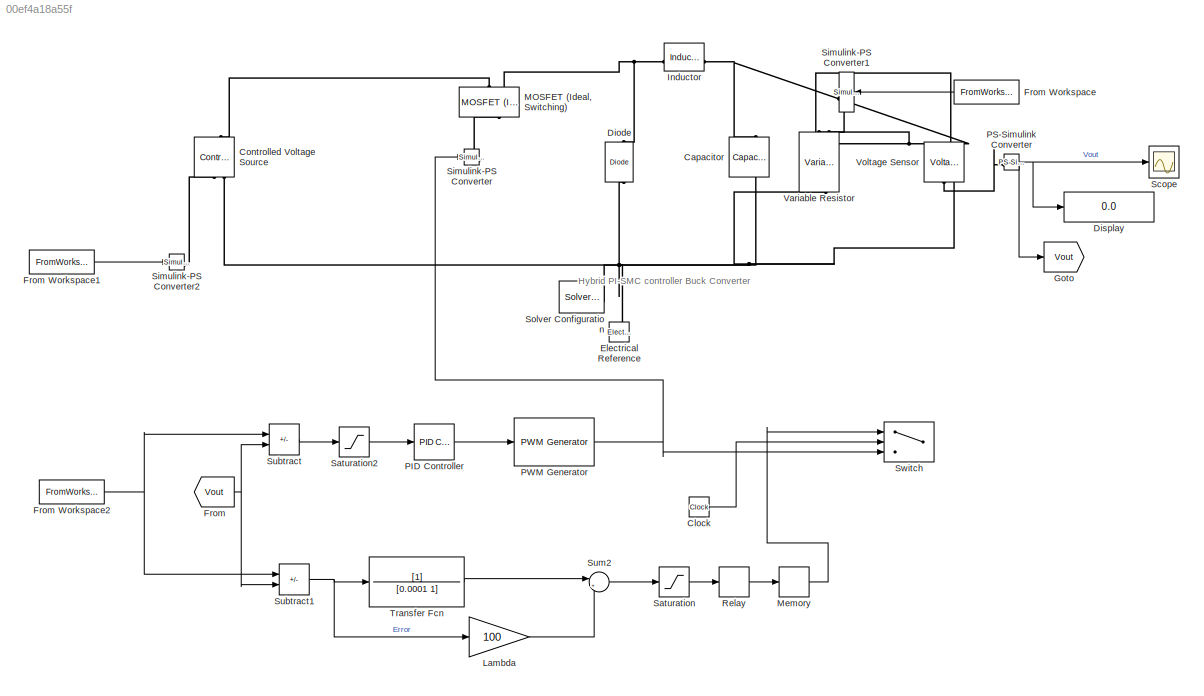
MODEL slx_00ef4a18a55f
KIND model
CONFIG AbsTol = 1e-4
CONFIG EnableMultiTasking = off
CONFIG FixedStep = auto
CONFIG MaxStep = 1e-6
CONFIG MinStep = auto
CONFIG RelTol = 1e-3
CONFIG SampleTimeConstraint = Unconstrained
CONFIG SolverName = ode23t
CONFIG StartTime = 0.0
CONFIG StopTime = 0.1
BLOCK [Reference] Capacitor  REF=fl_lib/Electrical/Electrical Elements/Capacitor
  NameLocation = left
  SourceBlock = fl_lib/Electrical/Electrical Elements/Capacitor
  SourceType = Capacitor
BLOCK [Clock] Clock
BLOCK [Reference] Controlled Voltage Source  REF=fl_lib/Electrical/Electrical Sources/Controlled Voltage
Source
  NameLocation = right
  SourceBlock = fl_lib/Electrical/Electrical Sources/Controlled Voltage\nSource
  SourceType = Controlled Voltage\nSource
BLOCK [Reference] Diode  REF=ee_lib/Semiconductors &
Converters/Diode
  NameLocation = right
  SourceBlock = ee_lib/Semiconductors &\nConverters/Diode
  SourceType = Diode
BLOCK [Display] Display
  Decimation = 1
BLOCK [Reference] Electrical Reference  REF=fl_lib/Electrical/Electrical Elements/Electrical Reference
  NameLocation = right
  SourceBlock = fl_lib/Electrical/Electrical Elements/Electrical Reference
  SourceType = Electrical Reference
BLOCK [From] From
  GotoTag = Vout
BLOCK [FromWorkspace] From Workspace
  NameLocation = top
  VariableName = R_load
BLOCK [FromWorkspace] From Workspace1
  VariableName = Vin_signal
BLOCK [FromWorkspace] From Workspace2
  VariableName = Vref_signal
BLOCK [Goto] Goto
  GotoTag = Vout
BLOCK [Reference] Inductor  REF=ee_lib/Passive/Inductor
  SourceBlock = ee_lib/Passive/Inductor
  SourceType = Inductor
BLOCK [Gain] Lambda
  Gain = 100
BLOCK [Reference] MOSFET (Ideal, Switching)  REF=ee_lib/Semiconductors &
Converters/MOSFET
(Ideal,
Switching)
  NameLocation = right
  SourceBlock = ee_lib/Semiconductors &\nConverters/MOSFET\n(Ideal,\nSwitching)
  SourceType = MOSFET\n(Ideal,\nSwitching)
BLOCK [Memory] Memory
BLOCK [Reference] PID Controller  REF=slpidlib/PID Controller
  LibrarySourceBlock = simulink/Continuous/PID Controller
  SourceBlock = slpidlib/PID Controller
  SourceType = PID 1dof
BLOCK [Reference] PS-Simulink Converter  REF=nesl_utility/PS-Simulink
Converter
  SourceBlock = nesl_utility/PS-Simulink\nConverter
  SourceType = PS-Simulink\nConverter
BLOCK [Reference] PWM Generator  REF=eePwmGenerator/PWM Generator
  LibrarySourceBlock = ee_sl_lib/Pulse Width\nModulation/PWM Generator
  SourceBlock = eePwmGenerator/PWM Generator
  SourceType = PWM Generator
BLOCK [Relay] Relay
  OffSwitchValue = 2e-5
  OnSwitchValue = 2e-5
  ZeroCross = off
BLOCK [Saturate] Saturation
  LowerLimit = -.1
  UpperLimit = 0.1
BLOCK [Saturate] Saturation2
BLOCK [Scope] Scope
  ActiveDisplayYMaximum = 57.510541283300007
  ActiveDisplayYMinimum = -6.3900601425886663
  DataLogging = on
  DataLoggingVariableName = VoutData
  Floating = off
  GraphicalSettings = {"Style":{"BackgroundColor":[0.12941176470588237,0.12941176470588237,0.12941176470588237],"AxesColor":[0.07058823529411765,0.07058823529411765,0.07058823529411765],"LabelsColor":[0.8509803921568627,0.8509803921568627,0.8509803921568627],"PreserveColors":false,"Visible":[true],"LineStyle":["-"],"LineWidth":[1.5],"BarWidth":[0.9],"LineColor":["auto"],"LineFaceAlpha":[1],"LineEdgeAlpha":[1],"Marker":...<+2193ch>
  MultipleDisplayCache = [{"MaxYLimMag":57.510541283300007,"MaxYLimReal":57.510541283300007,"MinYLimMag":0,"MinYLimReal":-6.3900601425886663,"PlotAsMagnitudePhase":false,"ShowGrid":true,"ShowLegend":false,"Title":"%<SignalLabel>","YLabel":""}]
  NumInputPorts = 1
  ScopeFrameLocation = window
  WasSavedAsWebScope = on
  WindowPosition = [0.000000,32.000000,1366.000000,705.000000,]
BLOCK [Reference] Simulink-PS Converter  REF=nesl_utility/Simulink-PS
Converter
  SourceBlock = nesl_utility/Simulink-PS\nConverter
  SourceType = Simulink-PS\nConverter
BLOCK [Reference] Simulink-PS Converter1  REF=nesl_utility/Simulink-PS
Converter
  NameLocation = top
  SourceBlock = nesl_utility/Simulink-PS\nConverter
  SourceType = Simulink-PS\nConverter
BLOCK [Reference] Simulink-PS Converter2  REF=nesl_utility/Simulink-PS
Converter
  SourceBlock = nesl_utility/Simulink-PS\nConverter
  SourceType = Simulink-PS\nConverter
BLOCK [Reference] Solver Configuration  REF=nesl_utility/Solver
Configuration
  SourceBlock = nesl_utility/Solver\nConfiguration
  SourceType = Solver\nConfiguration
BLOCK [Sum] Subtract
  IconShape = rectangular
  Inputs = +-
BLOCK [Sum] Subtract1
  IconShape = rectangular
  Inputs = +-
BLOCK [Sum] Sum2
  Inputs = |++
BLOCK [Switch] Switch
  InputSameDT = off
  SaturateOnIntegerOverflow = off
  Threshold = 0.01
BLOCK [TransferFcn] Transfer Fcn
  Denominator = [0.0001 1]
BLOCK [Reference] Variable Resistor  REF=fl_lib/Electrical/Electrical Elements/Variable Resistor
  NameLocation = left
  SourceBlock = fl_lib/Electrical/Electrical Elements/Variable Resistor
  SourceType = Variable Resistor
BLOCK [Reference] Voltage Sensor  REF=fl_lib/Electrical/Electrical Sensors/Voltage Sensor
  NameLocation = right
  SourceBlock = fl_lib/Electrical/Electrical Sensors/Voltage Sensor
  SourceType = Voltage Sensor
ANNOTATION (root): Hybrid PI-SMC controller Buck Converter
LINE Clock:1 -> Switch:2
LINE From Workspace1:1 -> Simulink-PS Converter2:1
NET From Workspace2:1 -> Subtract1:1, Subtract:1
LINE From Workspace:1 -> Simulink-PS Converter1:1
NET From:1 -> Subtract1:2, Subtract:2
LINE Lambda:1 -> Sum2:2
LINE Memory:1 -> Switch:1
LINE PID Controller:1 -> PWM Generator:1
NET PS-Simulink Converter:1 -> Display:1, Goto:1, Scope:1
NET PWM Generator:1 -> Simulink-PS Converter:1, Switch:3
LINE Relay:1 -> Memory:1
LINE Saturation2:1 -> PID Controller:1
LINE Saturation:1 -> Relay:1
NET Subtract1:1 -> Lambda:1, Transfer Fcn:1
LINE Subtract:1 -> Saturation2:1
LINE Sum2:1 -> Saturation:1
LINE Transfer Fcn:1 -> Sum2:1
PNET net1: Capacitor:LConn1 -- Inductor:RConn1 -- Variable Resistor:LConn2 -- Voltage Sensor:LConn1
PNET net2: Capacitor:RConn1 -- Controlled Voltage Source:RConn2 -- Diode:LConn1 -- Electrical Reference:LConn1 -- Solver Configuration:RConn1 -- Variable Resistor:RConn1 -- Voltage Sensor:RConn2
PLINE Controlled Voltage Source:LConn1 -- MOSFET (Ideal, Switching):RConn1
PLINE Controlled Voltage Source:RConn1 -- Simulink-PS Converter2:RConn1
PNET net3: Diode:RConn1 -- Inductor:LConn1 -- MOSFET (Ideal, Switching):RConn2
PLINE MOSFET (Ideal, Switching):LConn1 -- Simulink-PS Converter:RConn1
PLINE PS-Simulink Converter:LConn1 -- Voltage Sensor:RConn1
PLINE Simulink-PS Converter1:RConn1 -- Variable Resistor:LConn1
note: NET lines group one-source signal fan-out (src -> all destinations, sorted); 1:1 wires keep LINE; PNET lines group multi-terminal physical nets as a canonical sorted terminal list (undirected conserving connections); 2-terminal nets keep the pairwise PLINE form
